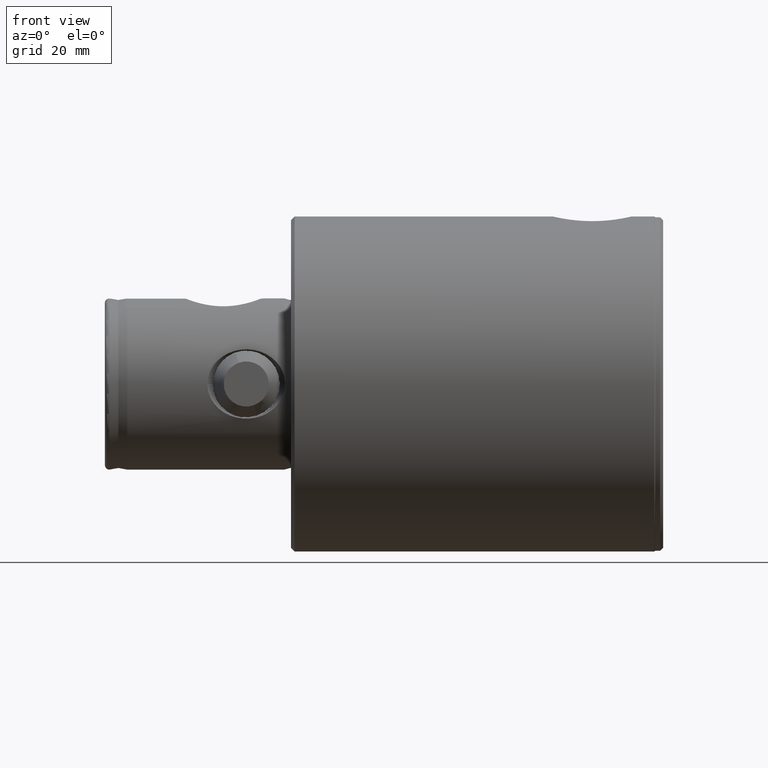
[diagram: clean part render]
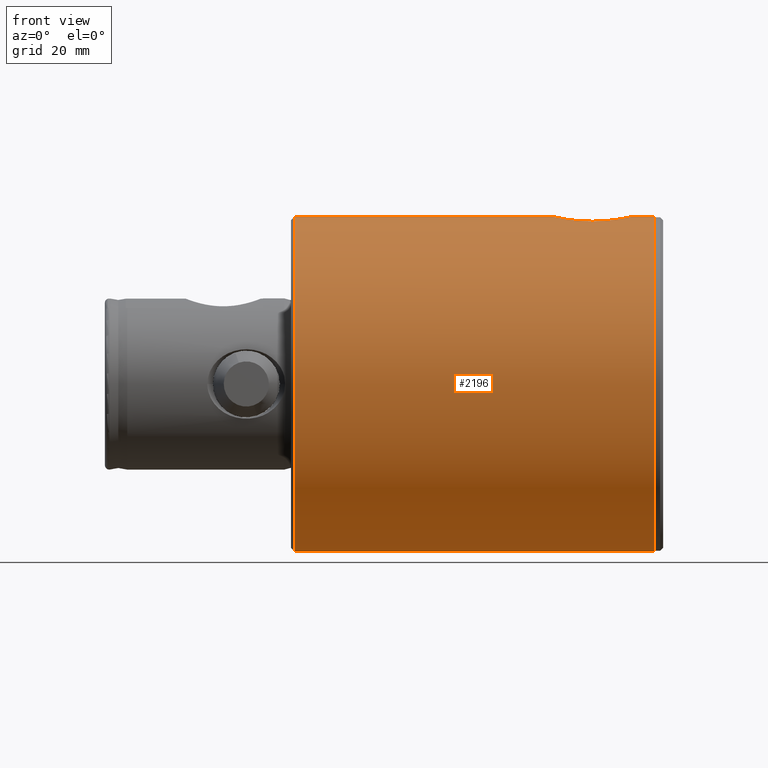
[diagram: same view with one face highlighted and labeled with its STEP entity id]
A machine part, front view. The second image highlights one B-rep face of the part: STEP entity #2196.
In plain terms, the highlighted cylindrical surface (partial cylindrical patch) has radius 45 mm, axis along (1, -0, -0).
Its self-contained STEP definition (entity closure, byte-faithful):
#61 = DIRECTION ( 'NONE',  ( 1.000000000000000000, 0.0000000000000000000, 0.0000000000000000000 ) ) ;
#82 = CARTESIAN_POINT ( 'NONE',  ( 44.07205453218148300, -9.092936770988110600, 24.31179930218082300 ) ) ;
#97 = CARTESIAN_POINT ( 'NONE',  ( 44.18318263185896200, -8.537201088355519800, 25.17231148575400500 ) ) ;
#134 = CARTESIAN_POINT ( 'NONE',  ( 44.69219681549110800, -5.263205987025623100, 28.14218977475338700 ) ) ;
#238 = VERTEX_POINT ( 'NONE', #1978 ) ;
#389 = CARTESIAN_POINT ( 'NONE',  ( 44.10780685143289000, -8.918499536349045800, 13.49757488272466500 ) ) ;
#447 = CARTESIAN_POINT ( 'NONE',  ( 44.07134624375614600, -9.096358115043296200, 13.79417540405740900 ) ) ;
#466 = CARTESIAN_POINT ( 'NONE',  ( 44.87665045873246300, -3.389923653558796000, 29.01141255758918200 ) ) ;
#487 = CARTESIAN_POINT ( 'NONE',  ( 45.00000000000000700, 5.510915833727564200E-015, 29.55000000000000400 ) ) ;
#505 = AXIS2_PLACEMENT_3D ( 'NONE', #2042, #2751, #61 ) ;
#534 = CARTESIAN_POINT ( 'NONE',  ( 43.75778914760027800, -10.50028042472414700, 19.73321841330658800 ) ) ;
#551 = EDGE_LOOP ( 'NONE', ( #3478, #2185, #1412, #1821, #2007, #4207 ) ) ;
#700 = DIRECTION ( 'NONE',  ( -0.0000000000000000000, -0.0000000000000000000, -1.000000000000000000 ) ) ;
#777 = VERTEX_POINT ( 'NONE', #4589 ) ;
#814 = VECTOR ( 'NONE', #2765, 1000.000000000000000 ) ;
#844 = CARTESIAN_POINT ( 'NONE',  ( 43.97169378518866300, -9.565989933203022500, 14.70734626723933200 ) ) ;
#857 = VECTOR ( 'NONE', #700, 1000.000000000000000 ) ;
#867 = CARTESIAN_POINT ( 'NONE',  ( 45.00000000000002100, -0.3433263564285548600, 29.55000000000000800 ) ) ;
#884 = CARTESIAN_POINT ( 'NONE',  ( 44.65646920714296200, -5.557131031351720400, 27.96543410158356500 ) ) ;
#932 = CARTESIAN_POINT ( 'NONE',  ( 0.0000000000000000000, 0.0000000000000000000, 100.0000000000000000 ) ) ;
#935 = CARTESIAN_POINT ( 'NONE',  ( 44.79125208637472600, -4.341091018152622100, 28.61675281388507800 ) ) ;
#998 = CYLINDRICAL_SURFACE ( 'NONE', #4244, 45.00000000000000700 ) ;
#1112 = CIRCLE ( 'NONE', #5004, 45.00000000000000700 ) ;
#1179 = EDGE_CURVE ( 'NONE', #1274, #2743, #2112, .T. ) ;
#1225 = CARTESIAN_POINT ( 'NONE',  ( 44.46367440508291900, -6.932102838102977700, 11.15604300939310500 ) ) ;
#1241 = CARTESIAN_POINT ( 'NONE',  ( 44.92189037477975700, -2.735200688179508800, 29.21088309329155300 ) ) ;
#1274 = VERTEX_POINT ( 'NONE', #1647 ) ;
#1321 = DIRECTION ( 'NONE',  ( -0.0000000000000000000, -0.0000000000000000000, -1.000000000000000000 ) ) ;
#1412 = ORIENTED_EDGE ( 'NONE', *, *, #4833, .T. ) ;
#1457 = B_SPLINE_CURVE_WITH_KNOTS ( 'NONE', 3,
 ( #2368, #1601, #4336, #2723, #1584, #2348, #4742, #3589, #2336, #4354, #2388, #1225, #3968, #1962, #1619, #389, #447, #3200, #844, #1710, #2490, #4782, #4443, #2100, #2833, #534, #1637, #1678, #4371, #4854, #2884, #82, #2465, #97, #3989, #4388, #4430, #2083, #3248, #884, #134, #3278, #935, #466, #1241, #2049, #4802, #3646, #867, #487 ),
 .UNSPECIFIED., .F., .F.,
 ( 4, 2, 2, 2, 2, 2, 2, 2, 2, 2, 2, 2, 2, 2, 2, 2, 2, 2, 2, 2, 2, 2, 2, 2, 4 ),
 ( 7.571446490938740900E-020, 0.002058852561900895900, 0.003088278842851345400, 0.004117705123801795400, 0.006176557685702694300, 0.007205983966653142100, 0.008235410247603590700, 0.01029426280950448300, 0.01132368909045493500, 0.01235311537140538500, 0.01338254165235584100, 0.01441196793330629500, 0.01647082049520721600, 0.01852967305710813800, 0.02058852561900905900, 0.02161795189995952300, 0.02264737818090998400, 0.02367680446186044800, 0.02470623074281090900, 0.02676508330471184100, 0.02779450958566230900, 0.02882393586661278000, 0.03088278842851372600, 0.03191221470946419700, 0.03294164099041466800 ),
 .UNSPECIFIED. ) ;
#1460 = CARTESIAN_POINT ( 'NONE',  ( -45.00000000000000700, 0.0000000000000000000, 100.0000000000000000 ) ) ;
#1584 = CARTESIAN_POINT ( 'NONE',  ( 44.91875584440557400, -2.723067653362850800, 8.903364512735706200 ) ) ;
#1601 = CARTESIAN_POINT ( 'NONE',  ( 45.00000000000002100, -0.6963447502938635600, 8.550000000000002500 ) ) ;
#1619 = CARTESIAN_POINT ( 'NONE',  ( 44.22160168237159900, -8.342840136209360900, 12.63725853375591500 ) ) ;
#1637 = CARTESIAN_POINT ( 'NONE',  ( 43.77448671923917100, -10.43136831653738600, 20.43180328592379500 ) ) ;
#1647 = CARTESIAN_POINT ( 'NONE',  ( 45.00000000000000700, 5.510910596163090300E-015, 98.99999999999998600 ) ) ;
#1678 = CARTESIAN_POINT ( 'NONE',  ( 43.83778647237861000, -10.16206719571597500, 21.78042406706415300 ) ) ;
#1710 = CARTESIAN_POINT ( 'NONE',  ( 43.91384316485958500, -9.828143071438059800, 15.33861095920330400 ) ) ;
#1742 = DIRECTION ( 'NONE',  ( -1.000000000000000000, 0.0000000000000000000, 0.0000000000000000000 ) ) ;
#1821 = ORIENTED_EDGE ( 'NONE', *, *, #3475, .T. ) ;
#1955 = DIRECTION ( 'NONE',  ( 1.000000000000000000, 0.0000000000000000000, 0.0000000000000000000 ) ) ;
#1962 = CARTESIAN_POINT ( 'NONE',  ( 44.30220426752059400, -7.909102160535854700, 12.11013424357552300 ) ) ;
#1978 = CARTESIAN_POINT ( 'NONE',  ( 45.00000000000000700, 5.510910596163090300E-015, 2.362794744706019600 ) ) ;
#2007 = ORIENTED_EDGE ( 'NONE', *, *, #3670, .F. ) ;
#2042 = CARTESIAN_POINT ( 'NONE',  ( 0.0000000000000000000, 0.0000000000000000000, 2.362794744706019600 ) ) ;
#2049 = CARTESIAN_POINT ( 'NONE',  ( 44.96832683482068700, -1.721618740845882500, 29.41362609906431700 ) ) ;
#2083 = CARTESIAN_POINT ( 'NONE',  ( 44.46494622476237200, -6.936309264586896000, 26.96276417488631300 ) ) ;
#2100 = CARTESIAN_POINT ( 'NONE',  ( 43.77420317293728400, -10.43256619806800600, 17.67524136602213900 ) ) ;
#2112 = LINE ( 'NONE', #2354, #814 ) ;
#2124 = VERTEX_POINT ( 'NONE', #4829 ) ;
#2185 = ORIENTED_EDGE ( 'NONE', *, *, #3281, .T. ) ;
#2196 = ADVANCED_FACE ( 'NONE', ( #3327 ), #998, .T. ) ;
#2333 = CIRCLE ( 'NONE', #505, 45.00000000000000700 ) ;
#2336 = CARTESIAN_POINT ( 'NONE',  ( 44.69438747338875100, -5.267066362497234700, 9.940777848711126900 ) ) ;
#2348 = CARTESIAN_POINT ( 'NONE',  ( 44.87380131112571700, -3.384033088449603300, 9.104265778109672500 ) ) ;
#2354 = CARTESIAN_POINT ( 'NONE',  ( 45.00000000000000700, 5.510910596163090300E-015, 100.0000000000000000 ) ) ;
#2368 = CARTESIAN_POINT ( 'NONE',  ( 45.00000000000000700, 7.795060392683076900E-017, 8.550000000000000700 ) ) ;
#2388 = CARTESIAN_POINT ( 'NONE',  ( 44.54338703216242800, -6.399926801319296900, 10.71876097658087300 ) ) ;
#2465 = CARTESIAN_POINT ( 'NONE',  ( 44.10814284051792800, -8.916791186502639000, 24.60493791935813600 ) ) ;
#2486 = CARTESIAN_POINT ( 'NONE',  ( 45.00000000000000700, 5.510910596163090300E-015, 100.0000000000000000 ) ) ;
#2490 = CARTESIAN_POINT ( 'NONE',  ( 43.88766966497608000, -9.943995207312536200, 15.66098096956005900 ) ) ;
#2695 = VECTOR ( 'NONE', #4453, 1000.000000000000000 ) ;
#2723 = CARTESIAN_POINT ( 'NONE',  ( 44.93776868348884100, -2.389625858568737500, 8.819784151122075100 ) ) ;
#2743 = VERTEX_POINT ( 'NONE', #4536 ) ;
#2751 = DIRECTION ( 'NONE',  ( -0.0000000000000000000, -0.0000000000000000000, 1.000000000000000000 ) ) ;
#2765 = DIRECTION ( 'NONE',  ( -0.0000000000000000000, -0.0000000000000000000, -1.000000000000000000 ) ) ;
#2833 = CARTESIAN_POINT ( 'NONE',  ( 43.75792414909135200, -10.49971781744899800, 18.35818922235174400 ) ) ;
#2884 = CARTESIAN_POINT ( 'NONE',  ( 44.00385383644132300, -9.417448558387466300, 23.70614579537025400 ) ) ;
#2886 = LINE ( 'NONE', #2486, #2695 ) ;
#2964 = EDGE_CURVE ( 'NONE', #2124, #2743, #1457, .T. ) ;
#3182 = LINE ( 'NONE', #1460, #857 ) ;
#3200 = CARTESIAN_POINT ( 'NONE',  ( 44.00337221130668300, -9.419688143848379300, 14.39845204119409800 ) ) ;
#3248 = CARTESIAN_POINT ( 'NONE',  ( 44.54499832192883000, -6.408659289729237200, 27.39540401570427600 ) ) ;
#3278 = CARTESIAN_POINT ( 'NONE',  ( 44.75969336421177800, -4.654421918798586700, 28.46836550383343900 ) ) ;
#3281 = EDGE_CURVE ( 'NONE', #1274, #4287, #1112, .T. ) ;
#3327 = FACE_OUTER_BOUND ( 'NONE', #551, .T. ) ;
#3475 = EDGE_CURVE ( 'NONE', #777, #238, #2333, .T. ) ;
#3477 = CARTESIAN_POINT ( 'NONE',  ( 0.0000000000000000000, 0.0000000000000000000, 98.99999999999998600 ) ) ;
#3478 = ORIENTED_EDGE ( 'NONE', *, *, #1179, .F. ) ;
#3589 = CARTESIAN_POINT ( 'NONE',  ( 44.76210592771762700, -4.664840085812511600, 9.618002788930590800 ) ) ;
#3646 = CARTESIAN_POINT ( 'NONE',  ( 44.99607155356802200, -0.6872682021690457200, 29.53320325891787600 ) ) ;
#3670 = EDGE_CURVE ( 'NONE', #2124, #238, #2886, .T. ) ;
#3968 = CARTESIAN_POINT ( 'NONE',  ( 44.42327991808412700, -7.185541128284808300, 11.38616237649348400 ) ) ;
#3989 = CARTESIAN_POINT ( 'NONE',  ( 44.22213588713811600, -8.333756137715717200, 25.44654590501611200 ) ) ;
#4207 = ORIENTED_EDGE ( 'NONE', *, *, #2964, .T. ) ;
#4240 = CARTESIAN_POINT ( 'NONE',  ( -45.00000000000000700, 0.0000000000000000000, 98.99999999999998600 ) ) ;
#4244 = AXIS2_PLACEMENT_3D ( 'NONE', #932, #1321, #1742 ) ;
#4287 = VERTEX_POINT ( 'NONE', #4240 ) ;
#4336 = CARTESIAN_POINT ( 'NONE',  ( 44.98385774532094700, -1.380581880040625300, 8.618580829685869900 ) ) ;
#4354 = CARTESIAN_POINT ( 'NONE',  ( 44.58257549847858300, -6.121807481826576400, 10.51238017814259100 ) ) ;
#4371 = CARTESIAN_POINT ( 'NONE',  ( 43.88409167566143100, -9.962919078250733300, 22.43615382153108900 ) ) ;
#4388 = CARTESIAN_POINT ( 'NONE',  ( 44.30181926927139800, -7.899215354466409000, 25.97601528020657800 ) ) ;
#4430 = CARTESIAN_POINT ( 'NONE',  ( 44.34276050553860000, -7.666847330858796100, 26.23247922243029300 ) ) ;
#4443 = CARTESIAN_POINT ( 'NONE',  ( 43.82188929045004500, -10.22970401532746000, 16.65777186424763600 ) ) ;
#4453 = DIRECTION ( 'NONE',  ( -0.0000000000000000000, -0.0000000000000000000, -1.000000000000000000 ) ) ;
#4536 = CARTESIAN_POINT ( 'NONE',  ( 45.00000000000000700, 5.510915833727564200E-015, 29.55000000000000400 ) ) ;
#4589 = CARTESIAN_POINT ( 'NONE',  ( -45.00000000000000700, 0.0000000000000000000, 2.362794744706019600 ) ) ;
#4651 = DIRECTION ( 'NONE',  ( 0.0000000000000000000, 0.0000000000000000000, -1.000000000000000000 ) ) ;
#4742 = CARTESIAN_POINT ( 'NONE',  ( 44.84778159386417700, -3.711899936240379300, 9.221972478299893100 ) ) ;
#4782 = CARTESIAN_POINT ( 'NONE',  ( 43.84173177584000300, -10.14461158450215600, 16.31955196509374100 ) ) ;
#4802 = CARTESIAN_POINT ( 'NONE',  ( 44.98026543028813500, -1.376413693753146200, 29.46515115075857600 ) ) ;
#4829 = CARTESIAN_POINT ( 'NONE',  ( 45.00000000000000700, 7.795060392683076900E-017, 8.550000000000000700 ) ) ;
#4833 = EDGE_CURVE ( 'NONE', #4287, #777, #3182, .T. ) ;
#4854 = CARTESIAN_POINT ( 'NONE',  ( 43.97159374216688800, -9.566465306644762000, 23.39185330273521400 ) ) ;
#5004 = AXIS2_PLACEMENT_3D ( 'NONE', #3477, #4651, #1955 ) ;